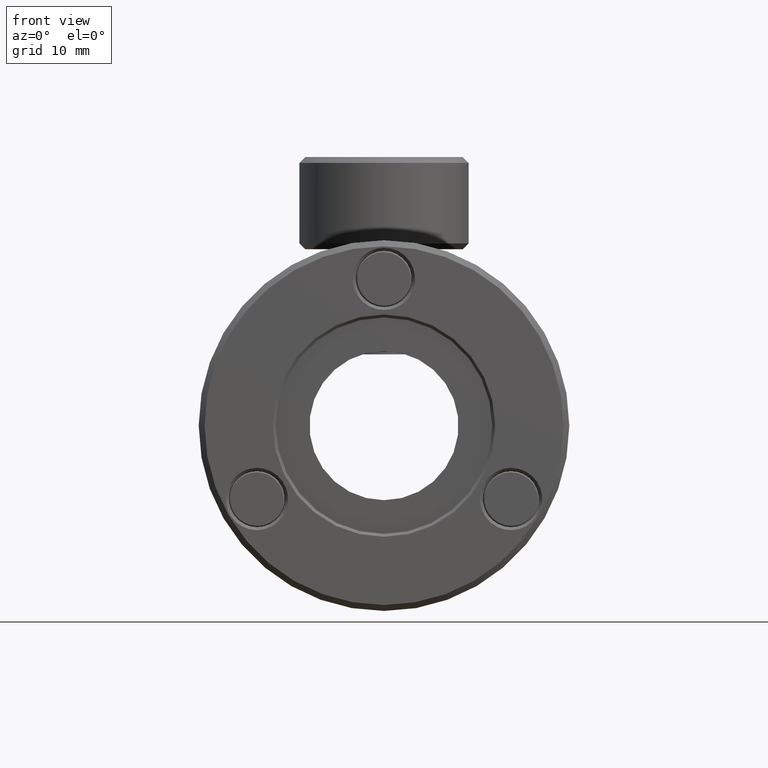
[diagram: clean part render]
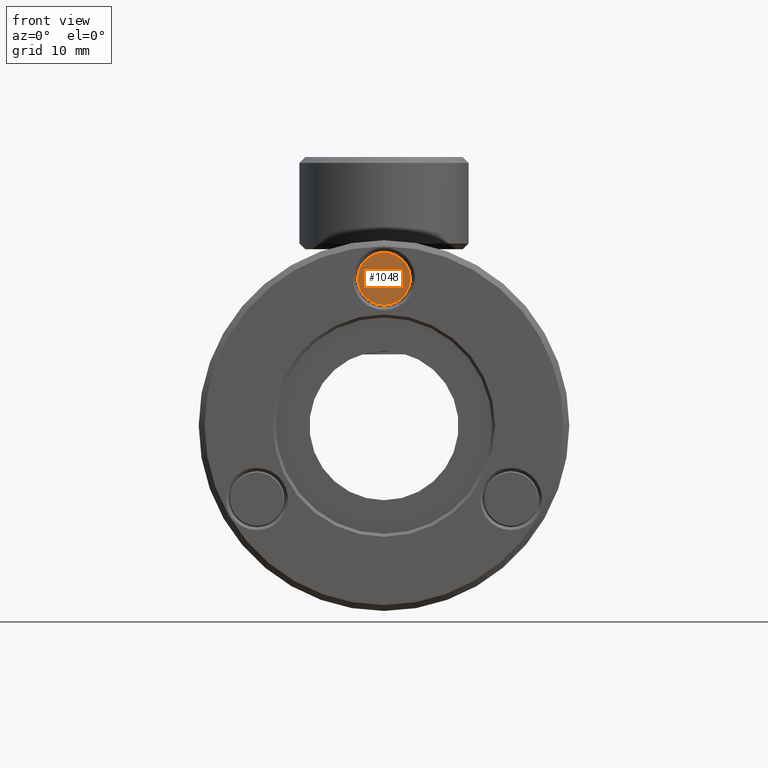
[diagram: same view with one face highlighted and labeled with its STEP entity id]
A machine part, front view. The second image highlights one B-rep face of the part: STEP entity #1048.
In plain terms, the highlighted planar face has unit normal (0, -1, -0).
Its self-contained STEP definition (entity closure, byte-faithful):
#173 = PLANE ( 'NONE',  #2722 ) ;
#312 = CIRCLE ( 'NONE', #1316, 2.254249999999999400 ) ;
#776 = DIRECTION ( 'NONE',  ( 0.0000000000000000000, 0.0000000000000000000, -1.000000000000000000 ) ) ;
#989 = EDGE_LOOP ( 'NONE', ( #3013, #3078 ) ) ;
#1013 = DIRECTION ( 'NONE',  ( 0.0000000000000000000, 0.0000000000000000000, -1.000000000000000000 ) ) ;
#1048 = ADVANCED_FACE ( 'NONE', ( #1840 ), #173, .T. ) ;
#1256 = AXIS2_PLACEMENT_3D ( 'NONE', #3536, #2755, #776 ) ;
#1316 = AXIS2_PLACEMENT_3D ( 'NONE', #1677, #2214, #3575 ) ;
#1677 = CARTESIAN_POINT ( 'NONE',  ( -16.77690416192945100, -19.54783156452665300, 24.41896359904498900 ) ) ;
#1832 = CARTESIAN_POINT ( 'NONE',  ( -14.52265416192945000, -19.54783156452665300, 24.41896359904498900 ) ) ;
#1840 = FACE_OUTER_BOUND ( 'NONE', #989, .T. ) ;
#2062 = CARTESIAN_POINT ( 'NONE',  ( -16.77690416192945100, -19.54783156452665300, 26.67321359904498800 ) ) ;
#2214 = DIRECTION ( 'NONE',  ( -0.0000000000000000000, -1.000000000000000000, -0.0000000000000000000 ) ) ;
#2257 = VERTEX_POINT ( 'NONE', #2924 ) ;
#2521 = EDGE_CURVE ( 'NONE', #3114, #2257, #312, .T. ) ;
#2722 = AXIS2_PLACEMENT_3D ( 'NONE', #1832, #2949, #1013 ) ;
#2755 = DIRECTION ( 'NONE',  ( -0.0000000000000000000, -1.000000000000000000, -0.0000000000000000000 ) ) ;
#2924 = CARTESIAN_POINT ( 'NONE',  ( -16.77690416192945100, -19.54783156452665300, 22.16471359904499000 ) ) ;
#2949 = DIRECTION ( 'NONE',  ( 0.0000000000000000000, -1.000000000000000000, -0.0000000000000000000 ) ) ;
#3013 = ORIENTED_EDGE ( 'NONE', *, *, #3285, .T. ) ;
#3078 = ORIENTED_EDGE ( 'NONE', *, *, #2521, .T. ) ;
#3114 = VERTEX_POINT ( 'NONE', #2062 ) ;
#3285 = EDGE_CURVE ( 'NONE', #2257, #3114, #3327, .T. ) ;
#3327 = CIRCLE ( 'NONE', #1256, 2.254249999999999400 ) ;
#3536 = CARTESIAN_POINT ( 'NONE',  ( -16.77690416192945100, -19.54783156452665300, 24.41896359904498900 ) ) ;
#3575 = DIRECTION ( 'NONE',  ( 0.0000000000000000000, 0.0000000000000000000, -1.000000000000000000 ) ) ;